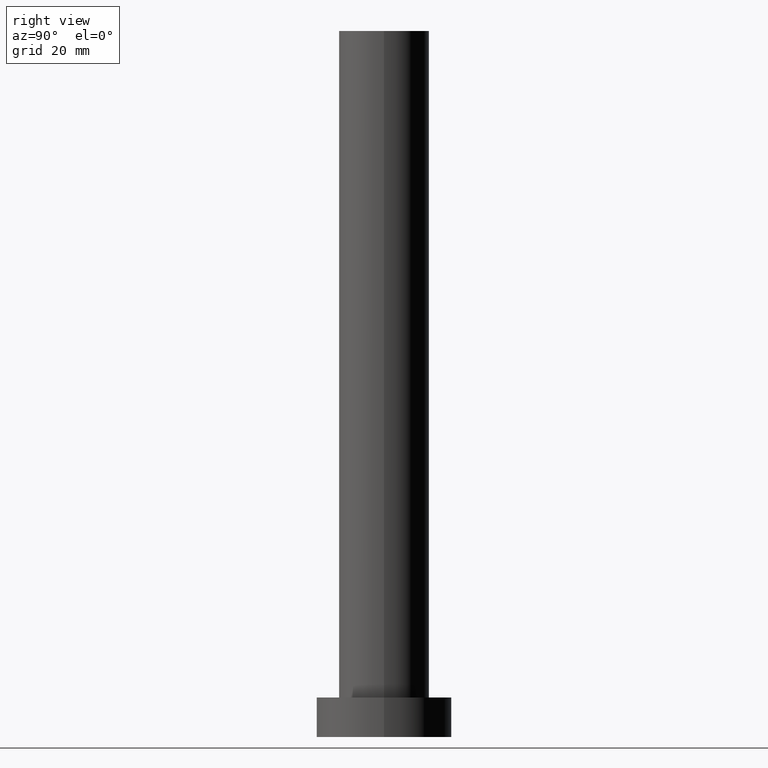
[diagram: clean part render]
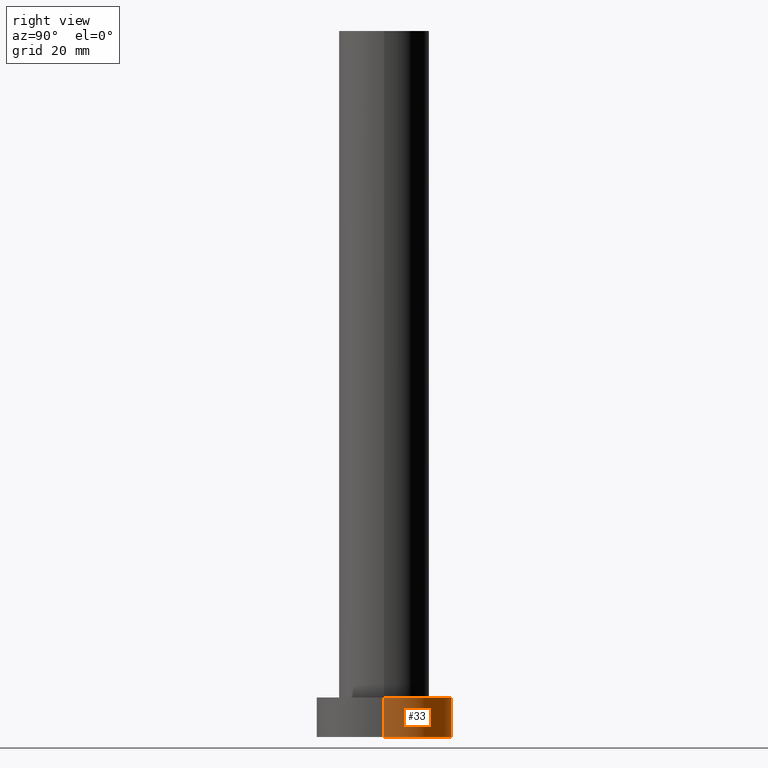
[diagram: same view with one face highlighted and labeled with its STEP entity id]
A machine part, right view. The second image highlights one B-rep face of the part: STEP entity #33.
In plain terms, the highlighted cylindrical surface (partial cylindrical patch) has radius 12 mm, axis along (-0, -0, -1).
Its self-contained STEP definition (entity closure, byte-faithful):
#7 = DIRECTION ( 'NONE',  ( -0.000000000000000000, -0.000000000000000000, -1.000000000000000000 ) ) ;
#16 = EDGE_CURVE ( 'NONE', #96, #80, #81, .T. ) ;
#18 = EDGE_CURVE ( 'NONE', #160, #100, #152, .T. ) ;
#21 = DIRECTION ( 'NONE',  ( -0.000000000000000000, -0.000000000000000000, -1.000000000000000000 ) ) ;
#22 = DIRECTION ( 'NONE',  ( 0.000000000000000000, 0.000000000000000000, 1.000000000000000000 ) ) ;
#33 = ADVANCED_FACE ( 'NONE', ( #181 ), #164, .T. ) ;
#37 = CARTESIAN_POINT ( 'NONE',  ( -12.00000000000000178, 0.000000000000000000, 7.000000000000000000 ) ) ;
#39 = DIRECTION ( 'NONE',  ( 0.000000000000000000, 0.000000000000000000, 1.000000000000000000 ) ) ;
#59 = VECTOR ( 'NONE', #88, 1000.000000000000000 ) ;
#67 = DIRECTION ( 'NONE',  ( -1.000000000000000000, 0.000000000000000000, 0.000000000000000000 ) ) ;
#76 = CARTESIAN_POINT ( 'NONE',  ( 12.00000000000000178, 1.469576158976824144E-15, 0.000000000000000000 ) ) ;
#80 = VERTEX_POINT ( 'NONE', #37 ) ;
#81 = CIRCLE ( 'NONE', #102, 12.00000000000000178 ) ;
#88 = DIRECTION ( 'NONE',  ( -0.000000000000000000, -0.000000000000000000, -1.000000000000000000 ) ) ;
#96 = VERTEX_POINT ( 'NONE', #121 ) ;
#100 = VERTEX_POINT ( 'NONE', #196 ) ;
#102 = AXIS2_PLACEMENT_3D ( 'NONE', #213, #22, #216 ) ;
#117 = ORIENTED_EDGE ( 'NONE', *, *, #201, .T. ) ;
#121 = CARTESIAN_POINT ( 'NONE',  ( 12.00000000000000178, 1.469576158976824144E-15, 7.000000000000000000 ) ) ;
#122 = DIRECTION ( 'NONE',  ( 1.000000000000000000, 0.000000000000000000, 0.000000000000000000 ) ) ;
#124 = AXIS2_PLACEMENT_3D ( 'NONE', #183, #21, #67 ) ;
#138 = ORIENTED_EDGE ( 'NONE', *, *, #18, .T. ) ;
#152 = CIRCLE ( 'NONE', #235, 12.00000000000000178 ) ;
#160 = VERTEX_POINT ( 'NONE', #76 ) ;
#164 = CYLINDRICAL_SURFACE ( 'NONE', #124, 12.00000000000000178 ) ;
#177 = ORIENTED_EDGE ( 'NONE', *, *, #16, .F. ) ;
#180 = ORIENTED_EDGE ( 'NONE', *, *, #222, .F. ) ;
#181 = FACE_OUTER_BOUND ( 'NONE', #233, .T. ) ;
#183 = CARTESIAN_POINT ( 'NONE',  ( 0.000000000000000000, 0.000000000000000000, 7.000000000000000000 ) ) ;
#185 = CARTESIAN_POINT ( 'NONE',  ( -12.00000000000000178, 0.000000000000000000, 7.000000000000000000 ) ) ;
#187 = LINE ( 'NONE', #248, #59 ) ;
#196 = CARTESIAN_POINT ( 'NONE',  ( -12.00000000000000178, 0.000000000000000000, 0.000000000000000000 ) ) ;
#201 = EDGE_CURVE ( 'NONE', #96, #160, #187, .T. ) ;
#207 = LINE ( 'NONE', #185, #242 ) ;
#213 = CARTESIAN_POINT ( 'NONE',  ( 0.000000000000000000, 0.000000000000000000, 7.000000000000000000 ) ) ;
#216 = DIRECTION ( 'NONE',  ( 1.000000000000000000, 0.000000000000000000, 0.000000000000000000 ) ) ;
#222 = EDGE_CURVE ( 'NONE', #80, #100, #207, .T. ) ;
#233 = EDGE_LOOP ( 'NONE', ( #177, #117, #138, #180 ) ) ;
#235 = AXIS2_PLACEMENT_3D ( 'NONE', #236, #39, #122 ) ;
#236 = CARTESIAN_POINT ( 'NONE',  ( 0.000000000000000000, 0.000000000000000000, 0.000000000000000000 ) ) ;
#242 = VECTOR ( 'NONE', #7, 1000.000000000000000 ) ;
#248 = CARTESIAN_POINT ( 'NONE',  ( 12.00000000000000178, 1.469576158976824144E-15, 7.000000000000000000 ) ) ;